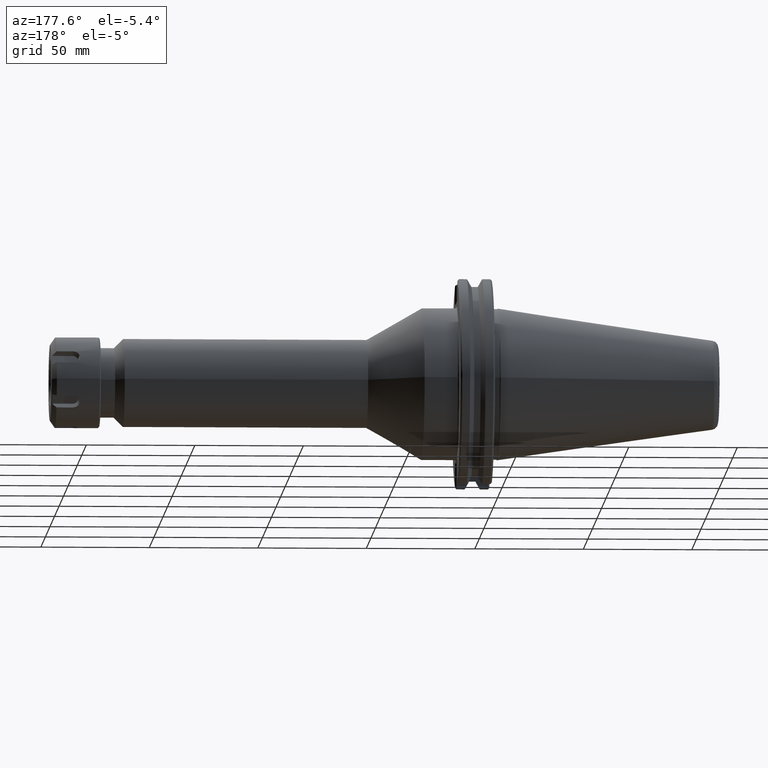
[diagram: clean part render]
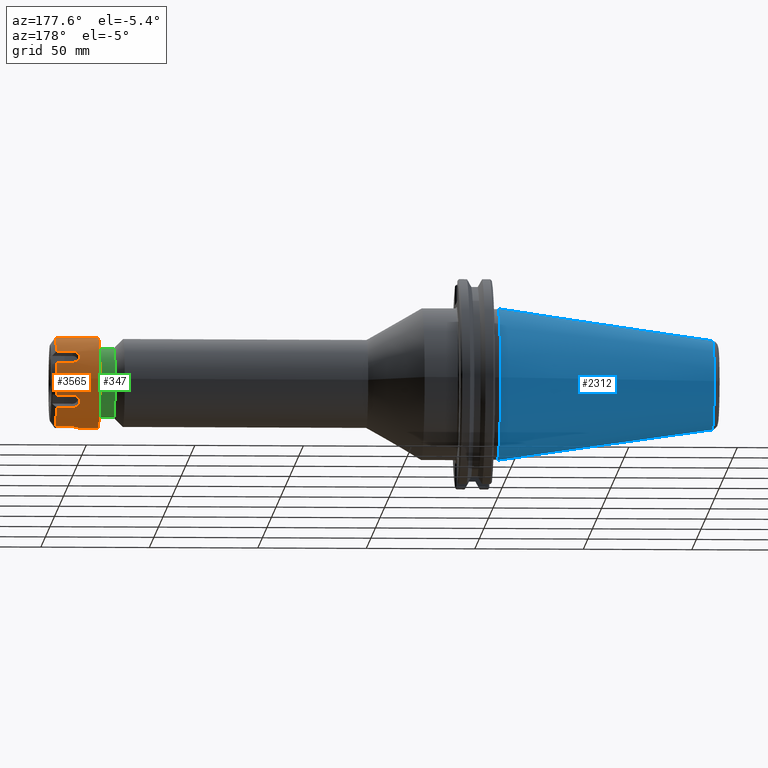
[diagram: same view with three faces highlighted in distinct colors, each labeled with its STEP entity id]
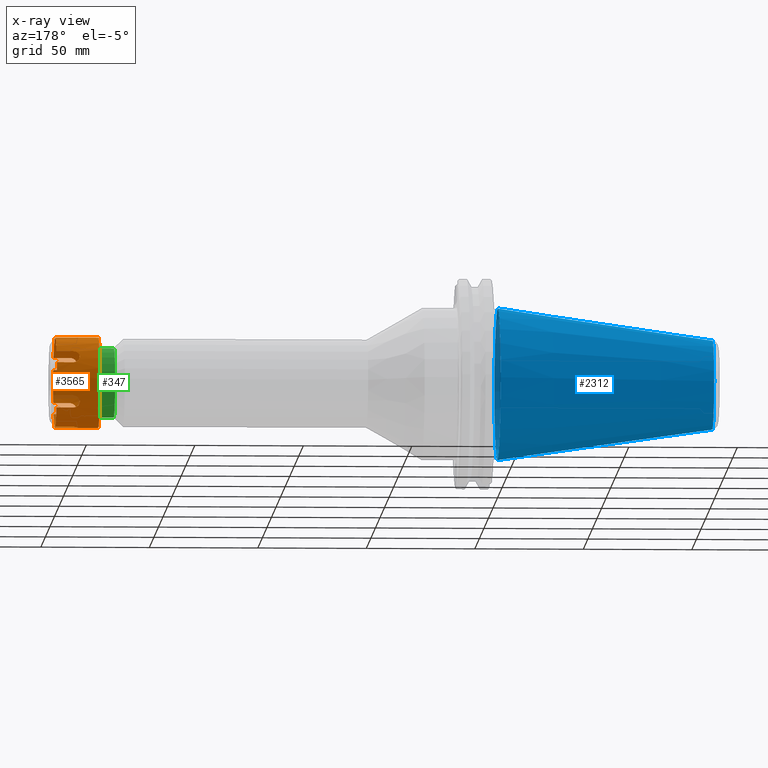
[diagram: x-ray of the same camera — body ghosted, the three highlighted faces saturated]
A machine part, auxiliary view with three faces highlighted in distinct colors.
The next image is the same camera in x-ray (body ghosted, the three faces saturated) — at least one of them is partly hidden behind the body in this view.
Their STEP definitions:

[orange] entity #3565 — the highlighted cylindrical surface (bore or boss wall) has radius 20.8661 mm, axis along (-1, -0, 0).
#2722=CARTESIAN_POINT('',(0.09,0.643444973152068,-0.510725774291189));
#2723=VERTEX_POINT('',#2722);
#2738=CARTESIAN_POINT('',(0.386,0.643444973152068,-0.510725774291189));
#2739=VERTEX_POINT('',#2738);
#2746=CARTESIAN_POINT('',(0.09,0.643444973152068,-0.510725774291189));
#2747=DIRECTION('',(1.0,0.0,0.0));
#2748=VECTOR('',#2747,0.296);
#2749=LINE('',#2746,#2748);
#2750=EDGE_CURVE('',#2723,#2739,#2749,.T.);
#2760=CARTESIAN_POINT('',(0.386,0.764023981479681,-0.301876805541493));
#2761=VERTEX_POINT('',#2760);
#2762=CARTESIAN_POINT('',(0.386,0.643444973152068,-0.510725774291189));
#2763=CARTESIAN_POINT('',(0.401270957829972,0.643444973152068,-0.510725774291189));
#2764=CARTESIAN_POINT('',(0.417576589503041,0.645324998017944,-0.508384990844019));
#2765=CARTESIAN_POINT('',(0.447650981749759,0.652822486422799,-0.498720817221933));
#2766=CARTESIAN_POINT('',(0.461420929853544,0.658419667853677,-0.491385402089237));
#2767=CARTESIAN_POINT('',(0.483319208479494,0.670985060210529,-0.474084468504465));
#2768=CARTESIAN_POINT('',(0.492894247321827,0.678804441544222,-0.462936867700261));
#2769=CARTESIAN_POINT('',(0.505634819849229,0.695208130138571,-0.43791742288043));
#2770=CARTESIAN_POINT('',(0.508797384328387,0.703772194896822,-0.424030801484439));
#2771=CARTESIAN_POINT('',(0.508797384328387,0.719107543521011,-0.397469198515562));
#2772=CARTESIAN_POINT('',(0.505634819849229,0.72685167804355,-0.383109190177266));
#2773=CARTESIAN_POINT('',(0.492894247321827,0.740317308548932,-0.356393456728875));
#2774=CARTESIAN_POINT('',(0.483319208479494,0.746061723369775,-0.344047873449917));
#2775=CARTESIAN_POINT('',(0.461420929853544,0.754762075184948,-0.324515457667978));
#2776=CARTESIAN_POINT('',(0.447650981749759,0.758316140321729,-0.3160004487929));
#2777=CARTESIAN_POINT('',(0.417576589503041,0.762936815982611,-0.304675346558673));
#2778=CARTESIAN_POINT('',(0.401270957829972,0.764023981479681,-0.301876805541493));
#2779=CARTESIAN_POINT('',(0.386,0.764023981479681,-0.301876805541493));
#2780=B_SPLINE_CURVE_WITH_KNOTS('',3,(#2762,#2763,#2764,#2765,#2766,#2767,#2768,#2769,#2770,#2771,#2772,#2773,#2774,#2775,#2776,#2777,#2778,#2779),.UNSPECIFIED.,.F.,.U.,(4,2,2,2,2,2,2,2,4),(0.0,0.11636469866439,0.232729397328779,0.349584753845103,0.466440110361428,0.583295466877752,0.700150823394076,0.816515522058465,0.932880220722855),.UNSPECIFIED.);
#2781=EDGE_CURVE('',#2739,#2761,#2780,.T.);
#2799=CARTESIAN_POINT('',(0.09,0.764023981479681,-0.301876805541493));
#2800=VERTEX_POINT('',#2799);
#2814=CARTESIAN_POINT('',(0.386,0.764023981479681,-0.301876805541493));
#2815=DIRECTION('',(-1.0,0.0,0.0));
#2816=VECTOR('',#2815,0.296);
#2817=LINE('',#2814,#2816);
#2818=EDGE_CURVE('',#2761,#2800,#2817,.T.);
#2878=CARTESIAN_POINT('',(0.09,-0.120579008327613,-0.812602579832681));
#2879=VERTEX_POINT('',#2878);
#2894=CARTESIAN_POINT('',(0.386,-0.120579008327613,-0.812602579832682));
#2895=VERTEX_POINT('',#2894);
#2902=CARTESIAN_POINT('',(0.09,-0.120579008327613,-0.812602579832681));
#2903=DIRECTION('',(1.0,0.0,0.0));
#2904=VECTOR('',#2903,0.296);
#2905=LINE('',#2902,#2904);
#2906=EDGE_CURVE('',#2879,#2895,#2905,.T.);
#2916=CARTESIAN_POINT('',(0.386,0.120579008327613,-0.812602579832682));
#2917=VERTEX_POINT('',#2916);
#2918=CARTESIAN_POINT('',(0.386,-0.120579008327613,-0.812602579832681));
#2919=CARTESIAN_POINT('',(0.401270957829972,-0.120579008327613,-0.812602579832681));
#2920=CARTESIAN_POINT('',(0.417576589503041,-0.117611817964667,-0.813060337402691));
#2921=CARTESIAN_POINT('',(0.447650981749759,-0.105493653898929,-0.814721266014833));
#2922=CARTESIAN_POINT('',(0.461420929853544,-0.096342407331272,-0.815900859757215));
#2923=CARTESIAN_POINT('',(0.483319208479494,-0.075076663159246,-0.818132341954382));
#2924=CARTESIAN_POINT('',(0.492894247321827,-0.061512867004711,-0.819330324429135));
#2925=CARTESIAN_POINT('',(0.505634819849229,-0.031643547904979,-0.821026613057696));
#2926=CARTESIAN_POINT('',(0.508797384328387,-0.01533534862419,-0.8215));
#2927=CARTESIAN_POINT('',(0.508797384328387,0.015335348624189,-0.8215));
#2928=CARTESIAN_POINT('',(0.505634819849229,0.031643547904979,-0.821026613057695));
#2929=CARTESIAN_POINT('',(0.492894247321827,0.061512867004711,-0.819330324429135));
#2930=CARTESIAN_POINT('',(0.483319208479494,0.075076663159246,-0.818132341954382));
#2931=CARTESIAN_POINT('',(0.461420929853544,0.096342407331272,-0.815900859757215));
#2932=CARTESIAN_POINT('',(0.447650981749759,0.105493653898929,-0.814721266014833));
#2933=CARTESIAN_POINT('',(0.417576589503041,0.117611817964667,-0.813060337402691));
#2934=CARTESIAN_POINT('',(0.401270957829972,0.120579008327613,-0.812602579832681));
#2935=CARTESIAN_POINT('',(0.386,0.120579008327613,-0.812602579832681));
#2936=B_SPLINE_CURVE_WITH_KNOTS('',3,(#2918,#2919,#2920,#2921,#2922,#2923,#2924,#2925,#2926,#2927,#2928,#2929,#2930,#2931,#2932,#2933,#2934,#2935),.UNSPECIFIED.,.F.,.U.,(4,2,2,2,2,2,2,2,4),(0.0,0.11636469866439,0.232729397328779,0.349584753845103,0.466440110361427,0.583295466877752,0.700150823394076,0.816515522058465,0.932880220722855),.UNSPECIFIED.);
#2937=EDGE_CURVE('',#2895,#2917,#2936,.T.);
#2955=CARTESIAN_POINT('',(0.09,0.120579008327613,-0.812602579832682));
#2956=VERTEX_POINT('',#2955);
#2970=CARTESIAN_POINT('',(0.386,0.120579008327613,-0.812602579832682));
#2971=DIRECTION('',(-1.0,0.0,0.0));
#2972=VECTOR('',#2971,0.296);
#2973=LINE('',#2970,#2972);
#2974=EDGE_CURVE('',#2917,#2956,#2973,.T.);
#3034=CARTESIAN_POINT('',(0.09,-0.764023981479681,-0.301876805541492));
#3035=VERTEX_POINT('',#3034);
#3050=CARTESIAN_POINT('',(0.386,-0.764023981479681,-0.301876805541492));
#3051=VERTEX_POINT('',#3050);
#3058=CARTESIAN_POINT('',(0.09,-0.764023981479681,-0.301876805541492));
#3059=DIRECTION('',(1.0,0.0,0.0));
#3060=VECTOR('',#3059,0.296);
#3061=LINE('',#3058,#3060);
#3062=EDGE_CURVE('',#3035,#3051,#3061,.T.);
#3072=CARTESIAN_POINT('',(0.386,-0.643444973152068,-0.510725774291189));
#3073=VERTEX_POINT('',#3072);
#3074=CARTESIAN_POINT('',(0.386,-0.764023981479681,-0.301876805541492));
#3075=CARTESIAN_POINT('',(0.401270957829972,-0.764023981479681,-0.301876805541492));
#3076=CARTESIAN_POINT('',(0.417576589503041,-0.762936815982611,-0.304675346558672));
#3077=CARTESIAN_POINT('',(0.447650981749759,-0.758316140321729,-0.3160004487929));
#3078=CARTESIAN_POINT('',(0.461420929853544,-0.754762075184949,-0.324515457667978));
#3079=CARTESIAN_POINT('',(0.483319208479494,-0.746061723369775,-0.344047873449917));
#3080=CARTESIAN_POINT('',(0.492894247321827,-0.740317308548933,-0.356393456728874));
#3081=CARTESIAN_POINT('',(0.505634819849229,-0.72685167804355,-0.383109190177266));
#3082=CARTESIAN_POINT('',(0.508797384328387,-0.719107543521011,-0.397469198515561));
#3083=CARTESIAN_POINT('',(0.508797384328387,-0.703772194896822,-0.424030801484439));
#3084=CARTESIAN_POINT('',(0.505634819849229,-0.695208130138571,-0.437917422880429));
#3085=CARTESIAN_POINT('',(0.492894247321827,-0.678804441544222,-0.462936867700261));
#3086=CARTESIAN_POINT('',(0.483319208479494,-0.67098506021053,-0.474084468504465));
#3087=CARTESIAN_POINT('',(0.461420929853544,-0.658419667853677,-0.491385402089237));
#3088=CARTESIAN_POINT('',(0.447650981749759,-0.6528224864228,-0.498720817221932));
#3089=CARTESIAN_POINT('',(0.417576589503041,-0.645324998017944,-0.508384990844018));
#3090=CARTESIAN_POINT('',(0.401270957829972,-0.643444973152068,-0.510725774291189));
#3091=CARTESIAN_POINT('',(0.386,-0.643444973152068,-0.510725774291189));
#3092=B_SPLINE_CURVE_WITH_KNOTS('',3,(#3074,#3075,#3076,#3077,#3078,#3079,#3080,#3081,#3082,#3083,#3084,#3085,#3086,#3087,#3088,#3089,#3090,#3091),.UNSPECIFIED.,.F.,.U.,(4,2,2,2,2,2,2,2,4),(0.0,0.11636469866439,0.232729397328779,0.349584753845103,0.466440110361428,0.583295466877752,0.700150823394076,0.816515522058465,0.932880220722855),.UNSPECIFIED.);
#3093=EDGE_CURVE('',#3051,#3073,#3092,.T.);
#3111=CARTESIAN_POINT('',(0.09,-0.643444973152068,-0.510725774291189));
#3112=VERTEX_POINT('',#3111);
#3126=CARTESIAN_POINT('',(0.386,-0.643444973152068,-0.510725774291189));
#3127=DIRECTION('',(-1.0,0.0,0.0));
#3128=VECTOR('',#3127,0.296);
#3129=LINE('',#3126,#3128);
#3130=EDGE_CURVE('',#3073,#3112,#3129,.T.);
#3190=CARTESIAN_POINT('',(0.09,-0.643444973152068,0.510725774291189));
#3191=VERTEX_POINT('',#3190);
#3206=CARTESIAN_POINT('',(0.386,-0.643444973152068,0.510725774291189));
#3207=VERTEX_POINT('',#3206);
#3214=CARTESIAN_POINT('',(0.09,-0.643444973152068,0.510725774291189));
#3215=DIRECTION('',(1.0,0.0,0.0));
#3216=VECTOR('',#3215,0.296);
#3217=LINE('',#3214,#3216);
#3218=EDGE_CURVE('',#3191,#3207,#3217,.T.);
#3228=CARTESIAN_POINT('',(0.386,-0.764023981479681,0.301876805541493));
#3229=VERTEX_POINT('',#3228);
#3230=CARTESIAN_POINT('',(0.386,-0.643444973152068,0.510725774291189));
#3231=CARTESIAN_POINT('',(0.401270957829972,-0.643444973152068,0.510725774291189));
#3232=CARTESIAN_POINT('',(0.417576589503041,-0.645324998017944,0.508384990844019));
#3233=CARTESIAN_POINT('',(0.447650981749758,-0.652822486422799,0.498720817221933));
#3234=CARTESIAN_POINT('',(0.461420929853544,-0.658419667853677,0.491385402089237));
#3235=CARTESIAN_POINT('',(0.483319208479494,-0.670985060210529,0.474084468504465));
#3236=CARTESIAN_POINT('',(0.492894247321827,-0.678804441544222,0.462936867700261));
#3237=CARTESIAN_POINT('',(0.505634819849229,-0.695208130138571,0.43791742288043));
#3238=CARTESIAN_POINT('',(0.508797384328387,-0.703772194896822,0.424030801484439));
#3239=CARTESIAN_POINT('',(0.508797384328387,-0.719107543521011,0.397469198515561));
#3240=CARTESIAN_POINT('',(0.505634819849229,-0.72685167804355,0.383109190177266));
#3241=CARTESIAN_POINT('',(0.492894247321827,-0.740317308548932,0.356393456728875));
#3242=CARTESIAN_POINT('',(0.483319208479493,-0.746061723369775,0.344047873449917));
#3243=CARTESIAN_POINT('',(0.461420929853544,-0.754762075184949,0.324515457667978));
#3244=CARTESIAN_POINT('',(0.447650981749759,-0.758316140321729,0.3160004487929));
#3245=CARTESIAN_POINT('',(0.417576589503041,-0.762936815982611,0.304675346558673));
#3246=CARTESIAN_POINT('',(0.401270957829972,-0.764023981479681,0.301876805541492));
#3247=CARTESIAN_POINT('',(0.386,-0.764023981479681,0.301876805541492));
#3248=B_SPLINE_CURVE_WITH_KNOTS('',3,(#3230,#3231,#3232,#3233,#3234,#3235,#3236,#3237,#3238,#3239,#3240,#3241,#3242,#3243,#3244,#3245,#3246,#3247),.UNSPECIFIED.,.F.,.U.,(4,2,2,2,2,2,2,2,4),(0.0,0.11636469866439,0.232729397328779,0.349584753845104,0.466440110361428,0.583295466877752,0.700150823394077,0.816515522058466,0.932880220722855),.UNSPECIFIED.);
#3249=EDGE_CURVE('',#3207,#3229,#3248,.T.);
#3267=CARTESIAN_POINT('',(0.09,-0.764023981479681,0.301876805541492));
#3268=VERTEX_POINT('',#3267);
#3282=CARTESIAN_POINT('',(0.386,-0.764023981479681,0.301876805541492));
#3283=DIRECTION('',(-1.0,0.0,0.0));
#3284=VECTOR('',#3283,0.296);
#3285=LINE('',#3282,#3284);
#3286=EDGE_CURVE('',#3229,#3268,#3285,.T.);
#3346=CARTESIAN_POINT('',(0.09,0.764023981479681,0.301876805541492));
#3347=VERTEX_POINT('',#3346);
#3362=CARTESIAN_POINT('',(0.386,0.764023981479682,0.301876805541492));
#3363=VERTEX_POINT('',#3362);
#3370=CARTESIAN_POINT('',(0.09,0.764023981479681,0.301876805541492));
#3371=DIRECTION('',(1.0,0.0,0.0));
#3372=VECTOR('',#3371,0.296);
#3373=LINE('',#3370,#3372);
#3374=EDGE_CURVE('',#3347,#3363,#3373,.T.);
#3384=CARTESIAN_POINT('',(0.386,0.643444973152069,0.510725774291189));
#3385=VERTEX_POINT('',#3384);
#3386=CARTESIAN_POINT('',(0.386,0.764023981479681,0.301876805541492));
#3387=CARTESIAN_POINT('',(0.401270957829972,0.764023981479681,0.301876805541492));
#3388=CARTESIAN_POINT('',(0.417576589503041,0.762936815982611,0.304675346558672));
#3389=CARTESIAN_POINT('',(0.447650981749758,0.758316140321729,0.316000448792899));
#3390=CARTESIAN_POINT('',(0.461420929853544,0.754762075184949,0.324515457667977));
#3391=CARTESIAN_POINT('',(0.483319208479493,0.746061723369775,0.344047873449916));
#3392=CARTESIAN_POINT('',(0.492894247321827,0.740317308548933,0.356393456728874));
#3393=CARTESIAN_POINT('',(0.505634819849229,0.726851678043551,0.383109190177265));
#3394=CARTESIAN_POINT('',(0.508797384328387,0.719107543521012,0.397469198515561));
#3395=CARTESIAN_POINT('',(0.508797384328387,0.703772194896822,0.424030801484438));
#3396=CARTESIAN_POINT('',(0.505634819849229,0.695208130138572,0.437917422880429));
#3397=CARTESIAN_POINT('',(0.492894247321827,0.678804441544222,0.46293686770026));
#3398=CARTESIAN_POINT('',(0.483319208479494,0.67098506021053,0.474084468504465));
#3399=CARTESIAN_POINT('',(0.461420929853544,0.658419667853677,0.491385402089236));
#3400=CARTESIAN_POINT('',(0.447650981749758,0.6528224864228,0.498720817221932));
#3401=CARTESIAN_POINT('',(0.417576589503041,0.645324998017944,0.508384990844018));
#3402=CARTESIAN_POINT('',(0.401270957829972,0.643444973152068,0.510725774291189));
#3403=CARTESIAN_POINT('',(0.386,0.643444973152068,0.510725774291189));
#3404=B_SPLINE_CURVE_WITH_KNOTS('',3,(#3386,#3387,#3388,#3389,#3390,#3391,#3392,#3393,#3394,#3395,#3396,#3397,#3398,#3399,#3400,#3401,#3402,#3403),.UNSPECIFIED.,.F.,.U.,(4,2,2,2,2,2,2,2,4),(0.0,0.11636469866439,0.232729397328779,0.349584753845103,0.466440110361428,0.583295466877752,0.700150823394076,0.816515522058465,0.932880220722855),.UNSPECIFIED.);
#3405=EDGE_CURVE('',#3363,#3385,#3404,.T.);
#3423=CARTESIAN_POINT('',(0.09,0.643444973152068,0.510725774291189));
#3424=VERTEX_POINT('',#3423);
#3438=CARTESIAN_POINT('',(0.386,0.643444973152068,0.510725774291189));
#3439=DIRECTION('',(-1.0,0.0,0.0));
#3440=VECTOR('',#3439,0.296);
#3441=LINE('',#3438,#3440);
#3442=EDGE_CURVE('',#3385,#3424,#3441,.T.);
#3449=CARTESIAN_POINT('',(0.4915,0.0,0.0));
#3450=DIRECTION('',(1.0,0.0,0.0));
#3451=DIRECTION('',(0.0,1.0,0.0));
#3452=AXIS2_PLACEMENT_3D('',#3449,#3450,#3451);
#3453=CYLINDRICAL_SURFACE('',#3452,0.8215);
#3454=CARTESIAN_POINT('',(0.873,0.8215,1.006014E-016));
#3455=VERTEX_POINT('',#3454);
#3456=CARTESIAN_POINT('',(0.873,0.0,0.0));
#3457=DIRECTION('',(1.0,0.0,0.0));
#3458=DIRECTION('',(0.0,-1.0,0.0));
#3459=AXIS2_PLACEMENT_3D('',#3456,#3457,#3458);
#3460=CIRCLE('',#3459,0.8215);
#3461=EDGE_CURVE('',#3455,#3455,#3460,.T.);
#3462=ORIENTED_EDGE('',*,*,#3461,.F.);
#3463=EDGE_LOOP('',(#3462));
#3464=FACE_OUTER_BOUND('',#3463,.T.);
#3465=ORIENTED_EDGE('',*,*,#2750,.T.);
#3466=ORIENTED_EDGE('',*,*,#2781,.T.);
#3467=ORIENTED_EDGE('',*,*,#2818,.T.);
#3468=CARTESIAN_POINT('',(0.09,0.0,0.0));
#3469=DIRECTION('',(1.0,0.0,0.0));
#3470=DIRECTION('',(0.0,1.0,0.0));
#3471=AXIS2_PLACEMENT_3D('',#3468,#3469,#3470);
#3472=CIRCLE('',#3471,0.8215);
#3473=EDGE_CURVE('',#2800,#3347,#3472,.T.);
#3474=ORIENTED_EDGE('',*,*,#3473,.T.);
#3475=ORIENTED_EDGE('',*,*,#3374,.T.);
#3476=ORIENTED_EDGE('',*,*,#3405,.T.);
#3477=ORIENTED_EDGE('',*,*,#3442,.T.);
#3478=CARTESIAN_POINT('',(0.09,0.120579008327613,0.812602579832681));
#3479=VERTEX_POINT('',#3478);
#3480=CARTESIAN_POINT('',(0.09,0.0,0.0));
#3481=DIRECTION('',(1.0,0.0,0.0));
#3482=DIRECTION('',(0.0,1.0,0.0));
#3483=AXIS2_PLACEMENT_3D('',#3480,#3481,#3482);
#3484=CIRCLE('',#3483,0.8215);
#3485=EDGE_CURVE('',#3424,#3479,#3484,.T.);
#3486=ORIENTED_EDGE('',*,*,#3485,.T.);
#3487=CARTESIAN_POINT('',(0.386,0.120579008327613,0.812602579832682));
#3488=VERTEX_POINT('',#3487);
#3489=CARTESIAN_POINT('',(0.09,0.120579008327613,0.812602579832681));
#3490=DIRECTION('',(1.0,0.0,0.0));
#3491=VECTOR('',#3490,0.296);
#3492=LINE('',#3489,#3491);
#3493=EDGE_CURVE('',#3479,#3488,#3492,.T.);
#3494=ORIENTED_EDGE('',*,*,#3493,.T.);
#3495=CARTESIAN_POINT('',(0.386,-0.120579008327613,0.812602579832682));
#3496=VERTEX_POINT('',#3495);
#3497=CARTESIAN_POINT('',(0.386,0.120579008327613,0.812602579832681));
#3498=CARTESIAN_POINT('',(0.401270957829972,0.120579008327613,0.812602579832681));
#3499=CARTESIAN_POINT('',(0.417576589503041,0.117611817964667,0.813060337402691));
#3500=CARTESIAN_POINT('',(0.447650981749759,0.105493653898929,0.814721266014833));
#3501=CARTESIAN_POINT('',(0.461420929853544,0.096342407331272,0.815900859757215));
#3502=CARTESIAN_POINT('',(0.483319208479494,0.075076663159246,0.818132341954382));
#3503=CARTESIAN_POINT('',(0.492894247321827,0.061512867004711,0.819330324429135));
#3504=CARTESIAN_POINT('',(0.505634819849229,0.031643547904979,0.821026613057695));
#3505=CARTESIAN_POINT('',(0.508797384328387,0.01533534862419,0.8215));
#3506=CARTESIAN_POINT('',(0.508797384328387,-0.01533534862419,0.8215));
#3507=CARTESIAN_POINT('',(0.505634819849229,-0.031643547904979,0.821026613057695));
#3508=CARTESIAN_POINT('',(0.492894247321827,-0.061512867004711,0.819330324429135));
#3509=CARTESIAN_POINT('',(0.483319208479494,-0.075076663159246,0.818132341954382));
#3510=CARTESIAN_POINT('',(0.461420929853544,-0.096342407331272,0.815900859757215));
#3511=CARTESIAN_POINT('',(0.447650981749759,-0.105493653898929,0.814721266014833));
#3512=CARTESIAN_POINT('',(0.417576589503041,-0.117611817964667,0.813060337402691));
#3513=CARTESIAN_POINT('',(0.401270957829972,-0.120579008327613,0.812602579832681));
#3514=CARTESIAN_POINT('',(0.386,-0.120579008327613,0.812602579832681));
#3515=B_SPLINE_CURVE_WITH_KNOTS('',3,(#3497,#3498,#3499,#3500,#3501,#3502,#3503,#3504,#3505,#3506,#3507,#3508,#3509,#3510,#3511,#3512,#3513,#3514),.UNSPECIFIED.,.F.,.U.,(4,2,2,2,2,2,2,2,4),(0.0,0.11636469866439,0.232729397328779,0.349584753845103,0.466440110361428,0.583295466877752,0.700150823394076,0.816515522058465,0.932880220722855),.UNSPECIFIED.);
#3516=EDGE_CURVE('',#3488,#3496,#3515,.T.);
#3517=ORIENTED_EDGE('',*,*,#3516,.T.);
#3518=CARTESIAN_POINT('',(0.09,-0.120579008327613,0.812602579832682));
#3519=VERTEX_POINT('',#3518);
#3520=CARTESIAN_POINT('',(0.386,-0.120579008327613,0.812602579832682));
#3521=DIRECTION('',(-1.0,0.0,0.0));
#3522=VECTOR('',#3521,0.296);
#3523=LINE('',#3520,#3522);
#3524=EDGE_CURVE('',#3496,#3519,#3523,.T.);
#3525=ORIENTED_EDGE('',*,*,#3524,.T.);
#3526=CARTESIAN_POINT('',(0.09,0.0,0.0));
#3527=DIRECTION('',(1.0,0.0,0.0));
#3528=DIRECTION('',(0.0,1.0,0.0));
#3529=AXIS2_PLACEMENT_3D('',#3526,#3527,#3528);
#3530=CIRCLE('',#3529,0.8215);
#3531=EDGE_CURVE('',#3519,#3191,#3530,.T.);
#3532=ORIENTED_EDGE('',*,*,#3531,.T.);
#3533=ORIENTED_EDGE('',*,*,#3218,.T.);
#3534=ORIENTED_EDGE('',*,*,#3249,.T.);
#3535=ORIENTED_EDGE('',*,*,#3286,.T.);
#3536=CARTESIAN_POINT('',(0.09,0.0,0.0));
#3537=DIRECTION('',(1.0,0.0,0.0));
#3538=DIRECTION('',(0.0,1.0,0.0));
#3539=AXIS2_PLACEMENT_3D('',#3536,#3537,#3538);
#3540=CIRCLE('',#3539,0.8215);
#3541=EDGE_CURVE('',#3268,#3035,#3540,.T.);
#3542=ORIENTED_EDGE('',*,*,#3541,.T.);
#3543=ORIENTED_EDGE('',*,*,#3062,.T.);
#3544=ORIENTED_EDGE('',*,*,#3093,.T.);
#3545=ORIENTED_EDGE('',*,*,#3130,.T.);
#3546=CARTESIAN_POINT('',(0.09,0.0,0.0));
#3547=DIRECTION('',(1.0,0.0,0.0));
#3548=DIRECTION('',(0.0,1.0,0.0));
#3549=AXIS2_PLACEMENT_3D('',#3546,#3547,#3548);
#3550=CIRCLE('',#3549,0.8215);
#3551=EDGE_CURVE('',#3112,#2879,#3550,.T.);
#3552=ORIENTED_EDGE('',*,*,#3551,.T.);
#3553=ORIENTED_EDGE('',*,*,#2906,.T.);
#3554=ORIENTED_EDGE('',*,*,#2937,.T.);
#3555=ORIENTED_EDGE('',*,*,#2974,.T.);
#3556=CARTESIAN_POINT('',(0.09,0.0,0.0));
#3557=DIRECTION('',(1.0,0.0,0.0));
#3558=DIRECTION('',(0.0,1.0,0.0));
#3559=AXIS2_PLACEMENT_3D('',#3556,#3557,#3558);
#3560=CIRCLE('',#3559,0.8215);
#3561=EDGE_CURVE('',#2956,#2723,#3560,.T.);
#3562=ORIENTED_EDGE('',*,*,#3561,.T.);
#3563=EDGE_LOOP('',(#3465,#3466,#3467,#3474,#3475,#3476,#3477,#3486,#3494,#3517,#3525,#3532,#3533,#3534,#3535,#3542,#3543,#3544,#3545,#3552,#3553,#3554,#3555,#3562));
#3564=FACE_BOUND('',#3563,.T.);
#3565=ADVANCED_FACE('',(#3464,#3564),#3453,.T.);

[blue] entity #2312 — the highlighted conical surface has half-angle 8.297 deg.
#2149=CARTESIAN_POINT('',(0.0,1.375,0.0));
#2150=VERTEX_POINT('',#2149);
#2151=CARTESIAN_POINT('',(0.0,0.0,0.0));
#2152=DIRECTION('',(1.0,1.033781E-013,0.0));
#2153=DIRECTION('',(-1.033781E-013,1.0,0.0));
#2154=AXIS2_PLACEMENT_3D('',#2151,#2152,#2153);
#2155=CIRCLE('',#2154,1.375);
#2156=EDGE_CURVE('',#2150,#2150,#2155,.T.);
#2277=CARTESIAN_POINT('',(-3.897316526722477,0.806651410560644,-1.975661E-016));
#2278=VERTEX_POINT('',#2277);
#2279=CARTESIAN_POINT('',(-3.897316526722475,1.188900E-014,-9.878304E-017));
#2280=DIRECTION('',(-1.0,0.0,0.0));
#2281=DIRECTION('',(0.0,-1.0,0.0));
#2282=AXIS2_PLACEMENT_3D('',#2279,#2280,#2281);
#2283=CIRCLE('',#2282,0.806651410560633);
#2284=EDGE_CURVE('',#2278,#2278,#2283,.T.);
#2301=CARTESIAN_POINT('',(-2.0,0.0,0.0));
#2302=DIRECTION('',(1.0,0.0,0.0));
#2303=DIRECTION('',(-1.033781E-013,1.0,0.0));
#2304=AXIS2_PLACEMENT_3D('',#2301,#2302,#2303);
#2305=CONICAL_SURFACE('',#2304,1.083338501354761,8.29699999999999);
#2306=ORIENTED_EDGE('',*,*,#2156,.F.);
#2307=EDGE_LOOP('',(#2306));
#2308=FACE_OUTER_BOUND('',#2307,.T.);
#2309=ORIENTED_EDGE('',*,*,#2284,.F.);
#2310=EDGE_LOOP('',(#2309));
#2311=FACE_BOUND('',#2310,.T.);
#2312=ADVANCED_FACE('',(#2308,#2311),#2305,.T.);

[green] entity #347 — the highlighted cylindrical surface (bore or boss wall) has radius 16 mm, axis along (1, 0, 0).
#305=CARTESIAN_POINT('',(7.483999999999999,0.62992125984252,7.714311E-017));
#306=VERTEX_POINT('',#305);
#307=CARTESIAN_POINT('',(7.483999999999999,0.0,0.0));
#308=DIRECTION('',(1.0,0.0,0.0));
#309=DIRECTION('',(0.0,-1.0,0.0));
#310=AXIS2_PLACEMENT_3D('',#307,#308,#309);
#311=CIRCLE('',#310,0.62992125984252);
#312=EDGE_CURVE('',#306,#306,#311,.T.);
#328=CARTESIAN_POINT('',(7.244000000000001,0.0,0.0));
#329=DIRECTION('',(1.0,0.0,0.0));
#330=DIRECTION('',(0.0,1.0,0.0));
#331=AXIS2_PLACEMENT_3D('',#328,#329,#330);
#332=CYLINDRICAL_SURFACE('',#331,0.62992125984252);
#333=CARTESIAN_POINT('',(6.964,0.62992125984252,0.0));
#334=VERTEX_POINT('',#333);
#335=CARTESIAN_POINT('',(6.964,0.0,0.0));
#336=DIRECTION('',(1.0,0.0,0.0));
#337=DIRECTION('',(0.0,1.0,0.0));
#338=AXIS2_PLACEMENT_3D('',#335,#336,#337);
#339=CIRCLE('',#338,0.62992125984252);
#340=EDGE_CURVE('',#334,#334,#339,.T.);
#341=ORIENTED_EDGE('',*,*,#340,.T.);
#342=EDGE_LOOP('',(#341));
#343=FACE_OUTER_BOUND('',#342,.T.);
#344=ORIENTED_EDGE('',*,*,#312,.F.);
#345=EDGE_LOOP('',(#344));
#346=FACE_BOUND('',#345,.T.);
#347=ADVANCED_FACE('',(#343,#346),#332,.T.);